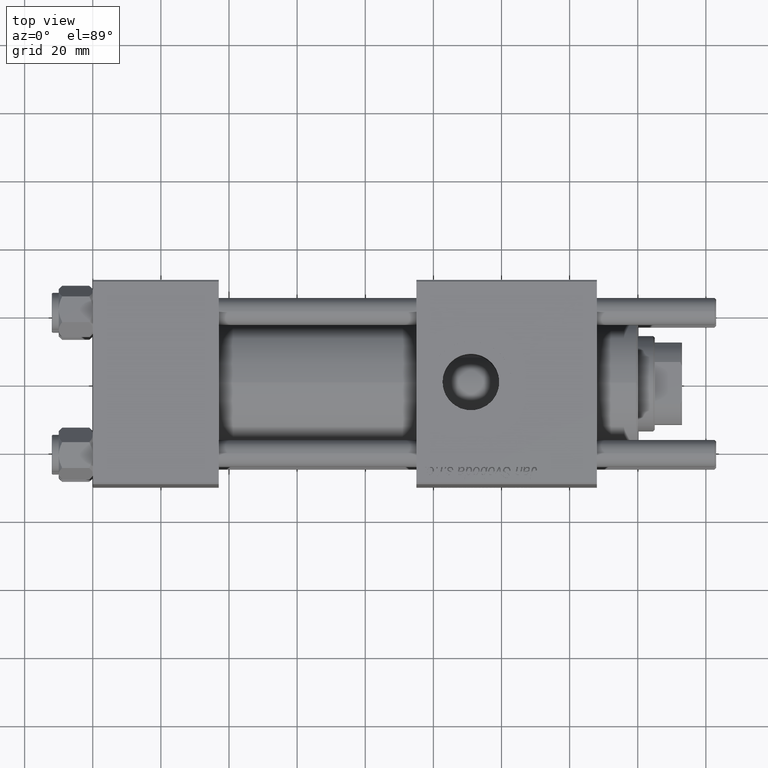
[diagram: clean part render]
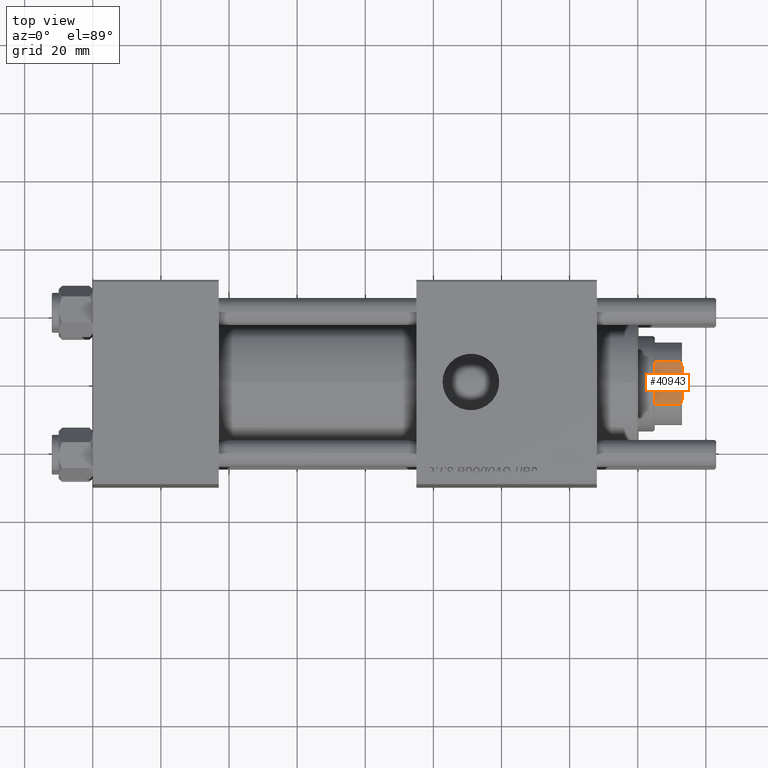
[diagram: same view with one face highlighted and labeled with its STEP entity id]
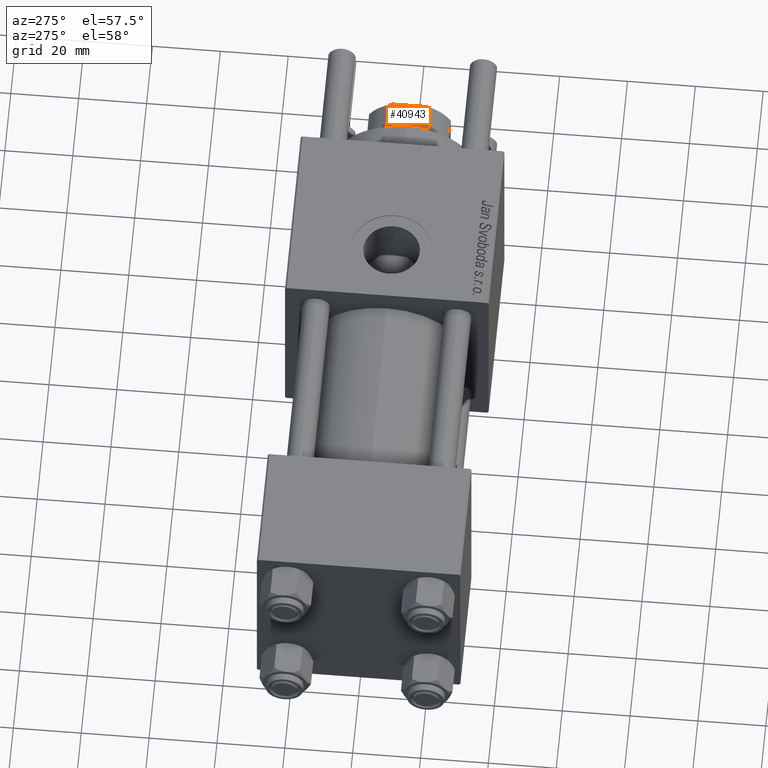
[diagram: same view with one face highlighted and labeled with its STEP entity id]
A machine part, top view. The second image highlights one B-rep face of the part: STEP entity #40943.
A second angle (auxiliary view) of the same face is appended — the face is thin or edge-on in the first view.
In plain terms, the highlighted planar face has unit normal (0, 0, -1).
Its self-contained STEP definition (entity closure, byte-faithful):
#1281 = CARTESIAN_POINT ( 'NONE',  ( 6.184658438426496652, -11.99999999999999645, 135.5000000000000284 ) ) ;
#2873 = ORIENTED_EDGE ( 'NONE', *, *, #43047, .F. ) ;
#4715 = CARTESIAN_POINT ( 'NONE',  ( -6.184658438426496652, -11.99999999999999645, 135.5000000000000284 ) ) ;
#5651 = CARTESIAN_POINT ( 'NONE',  ( -11.99999999999999822, -12.00000000000000355, 136.0000000000000000 ) ) ;
#5971 = CARTESIAN_POINT ( 'NONE',  ( 5.000000000000053291, -12.00000000000000355, 136.0000000000000000 ) ) ;
#6730 = EDGE_CURVE ( 'NONE', #50263, #23133, #45743, .T. ) ;
#7459 = VECTOR ( 'NONE', #49258, 1000.000000000000000 ) ;
#10982 = DIRECTION ( 'NONE',  ( 0.000000000000000000, -0.000000000000000000, 1.000000000000000000 ) ) ;
#11053 = CARTESIAN_POINT ( 'NONE',  ( -6.184658438426496652, -11.99999999999999645, -0.001000000000001000089 ) ) ;
#11189 = CARTESIAN_POINT ( 'NONE',  ( 6.184658438426496652, -11.99999999999999645, -0.001000000000001000089 ) ) ;
#13242 = VERTEX_POINT ( 'NONE', #35637 ) ;
#13606 = VECTOR ( 'NONE', #18408, 1000.000000000000000 ) ;
#13969 = LINE ( 'NONE', #18120, #13606 ) ;
#14548 = PLANE ( 'NONE',  #28306 ) ;
#16423 = CARTESIAN_POINT ( 'NONE',  ( -5.000000000000031086, -12.00000000000000355, 136.0000000000000000 ) ) ;
#17314 = CARTESIAN_POINT ( 'NONE',  ( -5.794808544282252782, -12.00000000000000355, 135.6785991435214385 ) ) ;
#18120 = CARTESIAN_POINT ( 'NONE',  ( -11.99999999999999822, -12.00000000000000355, 136.0000000000000000 ) ) ;
#18408 = DIRECTION ( 'NONE',  ( 1.000000000000000000, 0.000000000000000000, 0.000000000000000000 ) ) ;
#18449 = EDGE_CURVE ( 'NONE', #13242, #50263, #51854, .T. ) ;
#18866 = ORIENTED_EDGE ( 'NONE', *, *, #55616, .F. ) ;
#20576 = B_SPLINE_CURVE_WITH_KNOTS ( 'NONE', 3,
 ( #39872, #57997, #17314, #30962 ),
 .UNSPECIFIED., .F., .F.,
 ( 4, 4 ),
 ( 0.000000000000000000, 0.001285852097146092258 ),
 .UNSPECIFIED. ) ;
#23133 = VERTEX_POINT ( 'NONE', #52308 ) ;
#23174 = CARTESIAN_POINT ( 'NONE',  ( 6.184658438426496652, -11.99999999999999645, 135.5000000000000284 ) ) ;
#24957 = LINE ( 'NONE', #11053, #35035 ) ;
#26080 = LINE ( 'NONE', #39746, #7459 ) ;
#28215 = CARTESIAN_POINT ( 'NONE',  ( 5.400255697127826160, -12.00000000000000355, 135.8460555011047006 ) ) ;
#28306 = AXIS2_PLACEMENT_3D ( 'NONE', #5651, #33225, #10982 ) ;
#29559 = ORIENTED_EDGE ( 'NONE', *, *, #6730, .T. ) ;
#29705 = DIRECTION ( 'NONE',  ( -0.000000000000000000, -0.000000000000000000, 1.000000000000000000 ) ) ;
#30054 = CARTESIAN_POINT ( 'NONE',  ( -6.184658438426496652, -11.99999999999999645, 128.0000000000000853 ) ) ;
#30962 = CARTESIAN_POINT ( 'NONE',  ( -6.184658438426496652, -11.99999999999999645, 135.5000000000000284 ) ) ;
#33225 = DIRECTION ( 'NONE',  ( 0.000000000000000000, 1.000000000000000000, 0.000000000000000000 ) ) ;
#33311 = EDGE_CURVE ( 'NONE', #38459, #55867, #20576, .T. ) ;
#35035 = VECTOR ( 'NONE', #29705, 1000.000000000000000 ) ;
#35637 = CARTESIAN_POINT ( 'NONE',  ( 6.184658438426496652, -11.99999999999999645, 128.0000000000000853 ) ) ;
#37049 = VERTEX_POINT ( 'NONE', #30054 ) ;
#37409 = CARTESIAN_POINT ( 'NONE',  ( 5.794808544282259888, -11.99999999999999645, 135.6785991435214385 ) ) ;
#38459 = VERTEX_POINT ( 'NONE', #16423 ) ;
#39427 = EDGE_LOOP ( 'NONE', ( #50348, #29559, #18866, #50394, #2873, #58587 ) ) ;
#39746 = CARTESIAN_POINT ( 'NONE',  ( -11.99999999999999822, -12.00000000000000355, 128.0000000000000000 ) ) ;
#39872 = CARTESIAN_POINT ( 'NONE',  ( -5.000000000000031086, -12.00000000000000355, 136.0000000000000000 ) ) ;
#40672 = VECTOR ( 'NONE', #47396, 1000.000000000000000 ) ;
#40943 = ADVANCED_FACE ( 'NONE', ( #56096 ), #14548, .F. ) ;
#43047 = EDGE_CURVE ( 'NONE', #37049, #55867, #24957, .T. ) ;
#45743 = B_SPLINE_CURVE_WITH_KNOTS ( 'NONE', 3,
 ( #23174, #37409, #28215, #5971 ),
 .UNSPECIFIED., .F., .F.,
 ( 4, 4 ),
 ( 0.000000000000000000, 0.001285852097146072308 ),
 .UNSPECIFIED. ) ;
#47396 = DIRECTION ( 'NONE',  ( -0.000000000000000000, -0.000000000000000000, 1.000000000000000000 ) ) ;
#49258 = DIRECTION ( 'NONE',  ( 1.000000000000000000, 0.000000000000000000, 0.000000000000000000 ) ) ;
#50263 = VERTEX_POINT ( 'NONE', #1281 ) ;
#50348 = ORIENTED_EDGE ( 'NONE', *, *, #18449, .T. ) ;
#50394 = ORIENTED_EDGE ( 'NONE', *, *, #33311, .T. ) ;
#51854 = LINE ( 'NONE', #11189, #40672 ) ;
#52308 = CARTESIAN_POINT ( 'NONE',  ( 5.000000000000053291, -12.00000000000000355, 136.0000000000000000 ) ) ;
#55616 = EDGE_CURVE ( 'NONE', #38459, #23133, #13969, .T. ) ;
#55867 = VERTEX_POINT ( 'NONE', #4715 ) ;
#56096 = FACE_OUTER_BOUND ( 'NONE', #39427, .T. ) ;
#57997 = CARTESIAN_POINT ( 'NONE',  ( -5.400255697127810173, -12.00000000000000355, 135.8460555011047006 ) ) ;
#58153 = EDGE_CURVE ( 'NONE', #37049, #13242, #26080, .T. ) ;
#58587 = ORIENTED_EDGE ( 'NONE', *, *, #58153, .T. ) ;